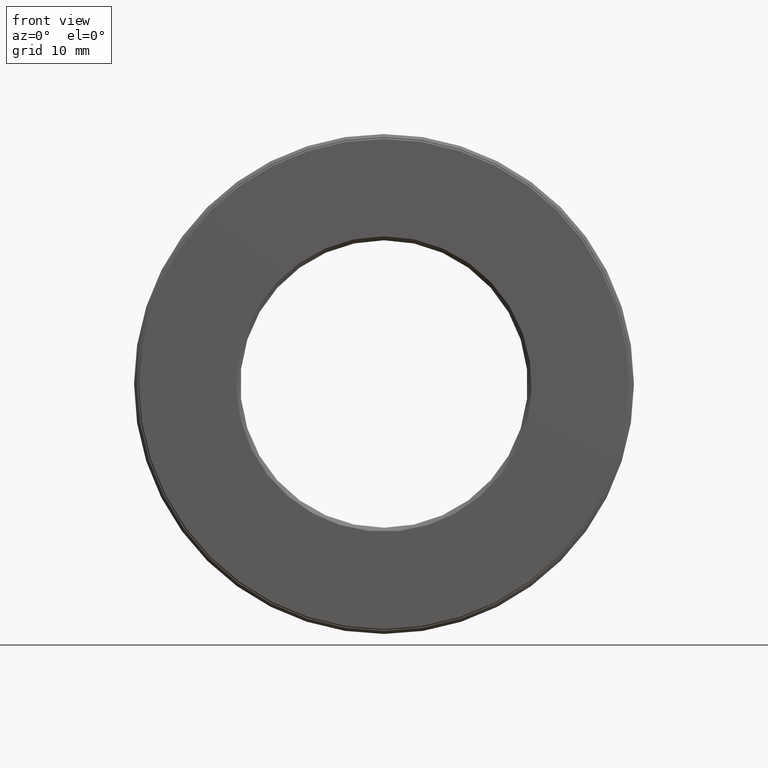
[diagram: clean part render]
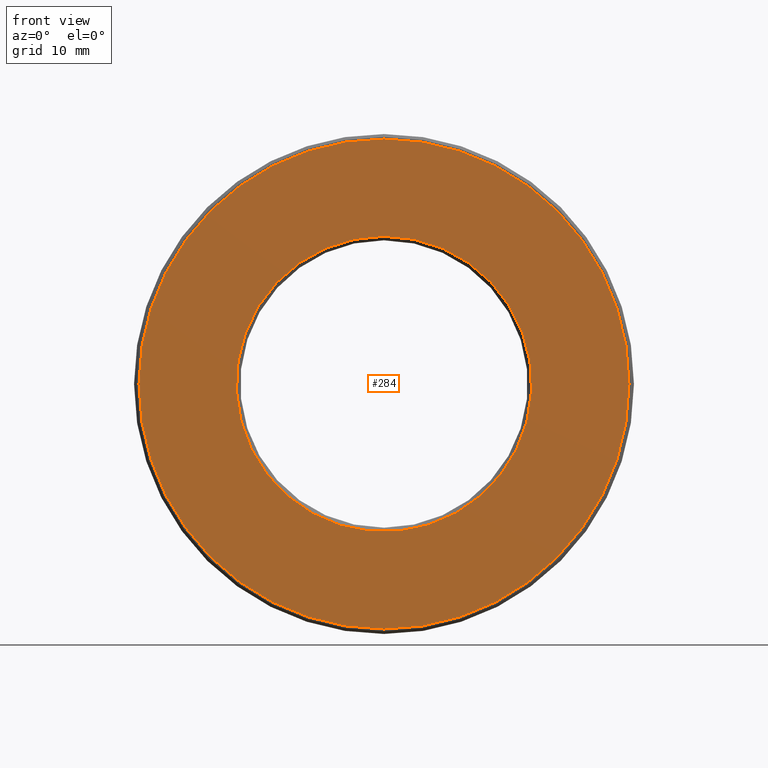
[diagram: same view with one face highlighted and labeled with its STEP entity id]
A machine part, front view. The second image highlights one B-rep face of the part: STEP entity #284.
In plain terms, the highlighted planar face has unit normal (-0, 1, 0).
Its self-contained STEP definition (entity closure, byte-faithful):
#22 = FACE_BOUND ( 'NONE', #597, .T. ) ;
#52 = CARTESIAN_POINT ( 'NONE',  ( 0.0000000000000000000, -5.975917486140573900E-017, 0.0000000000000000000 ) ) ;
#80 = EDGE_LOOP ( 'NONE', ( #495 ) ) ;
#95 = DIRECTION ( 'NONE',  ( -0.0000000000000000000, 1.000000000000000000, -0.0000000000000000000 ) ) ;
#103 = AXIS2_PLACEMENT_3D ( 'NONE', #362, #129, #468 ) ;
#129 = DIRECTION ( 'NONE',  ( -0.0000000000000000000, 1.000000000000000000, 0.0000000000000000000 ) ) ;
#135 = CIRCLE ( 'NONE', #492, 1.225000000000000100 ) ;
#138 = DIRECTION ( 'NONE',  ( 0.0000000000000000000, 0.0000000000000000000, 1.000000000000000000 ) ) ;
#174 = VERTEX_POINT ( 'NONE', #298 ) ;
#178 = DIRECTION ( 'NONE',  ( -0.0000000000000000000, 1.000000000000000000, -0.0000000000000000000 ) ) ;
#185 = CARTESIAN_POINT ( 'NONE',  ( 0.0000000000000000000, 0.0000000000000000000, 0.0000000000000000000 ) ) ;
#263 = PLANE ( 'NONE',  #103 ) ;
#284 = ADVANCED_FACE ( 'NONE', ( #527, #22 ), #263, .F. ) ;
#298 = CARTESIAN_POINT ( 'NONE',  ( 0.0000000000000000000, 0.0000000000000000000, 0.7387500000000000200 ) ) ;
#362 = CARTESIAN_POINT ( 'NONE',  ( -1.115802807144333800E-032, -2.987958743070286400E-017, 0.0000000000000000000 ) ) ;
#373 = EDGE_CURVE ( 'NONE', #507, #507, #135, .T. ) ;
#385 = EDGE_CURVE ( 'NONE', #174, #174, #461, .T. ) ;
#399 = CARTESIAN_POINT ( 'NONE',  ( 0.0000000000000000000, -5.975917486140573900E-017, 1.225000000000000100 ) ) ;
#461 = CIRCLE ( 'NONE', #463, 0.7387500000000000200 ) ;
#463 = AXIS2_PLACEMENT_3D ( 'NONE', #185, #95, #602 ) ;
#468 = DIRECTION ( 'NONE',  ( 0.0000000000000000000, 0.0000000000000000000, 1.000000000000000000 ) ) ;
#492 = AXIS2_PLACEMENT_3D ( 'NONE', #52, #178, #138 ) ;
#495 = ORIENTED_EDGE ( 'NONE', *, *, #373, .F. ) ;
#507 = VERTEX_POINT ( 'NONE', #399 ) ;
#525 = ORIENTED_EDGE ( 'NONE', *, *, #385, .T. ) ;
#527 = FACE_OUTER_BOUND ( 'NONE', #80, .T. ) ;
#597 = EDGE_LOOP ( 'NONE', ( #525 ) ) ;
#602 = DIRECTION ( 'NONE',  ( 0.0000000000000000000, 0.0000000000000000000, 1.000000000000000000 ) ) ;